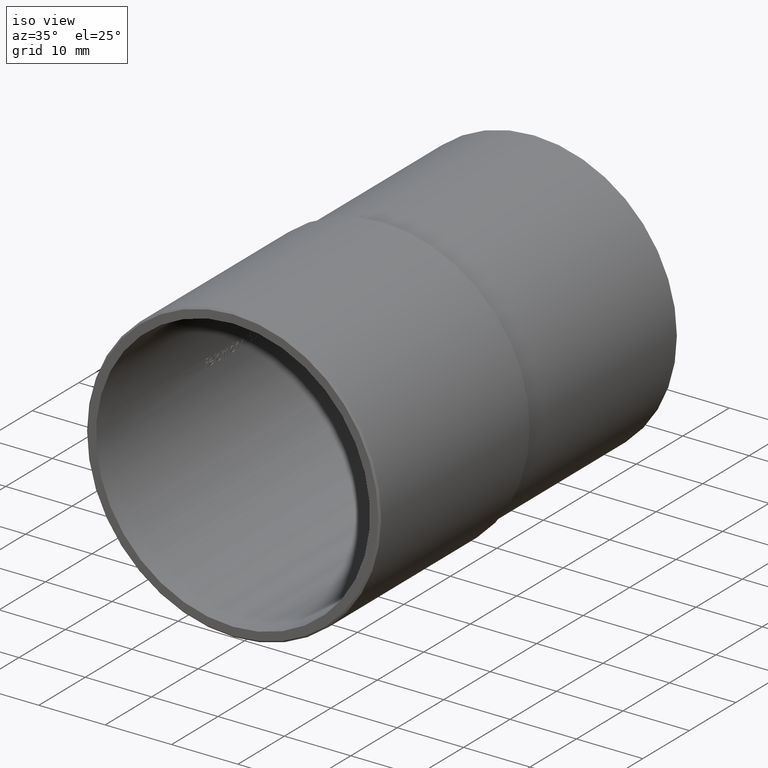
[diagram: clean part render]
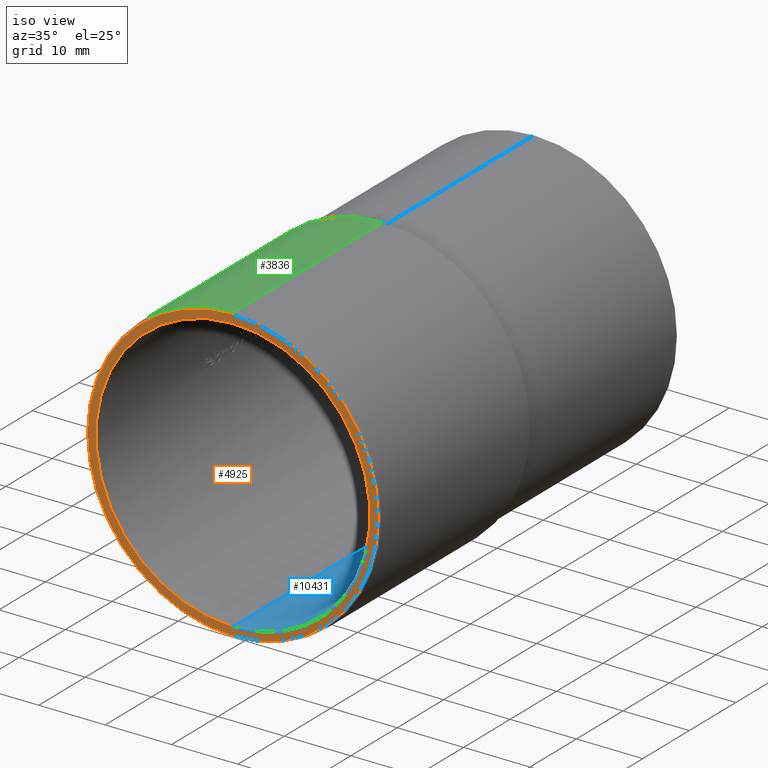
[diagram: same view with three faces highlighted in distinct colors, each labeled with its STEP entity id]
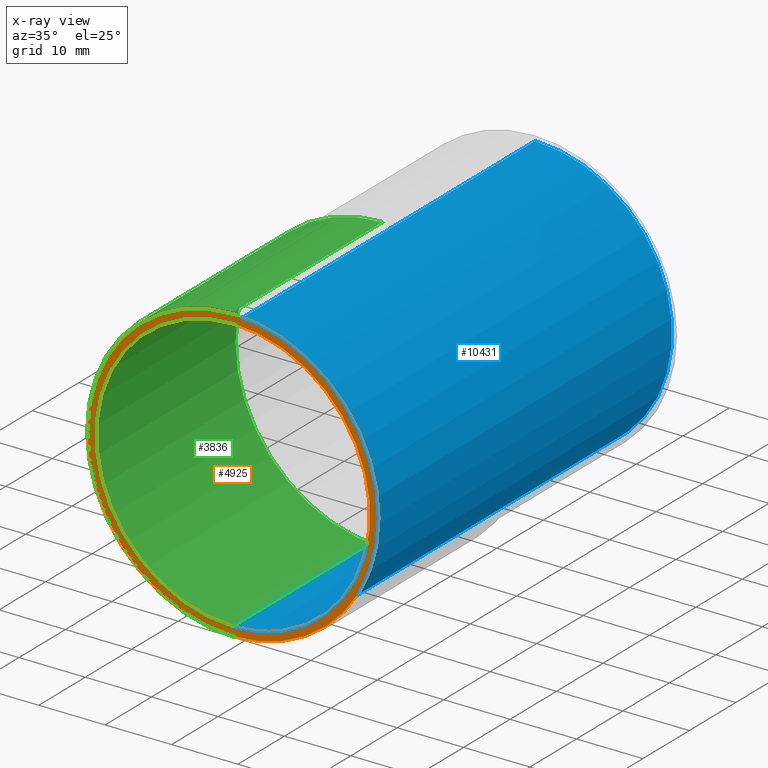
[diagram: x-ray of the same camera — body ghosted, the three highlighted faces saturated]
A machine part, iso view with three faces highlighted in distinct colors.
The next image is the same camera in x-ray (body ghosted, the three faces saturated) — at least one of them is partly hidden behind the body in this view.
Their STEP definitions:

[orange] entity #4925 — the highlighted planar face has unit normal (0, 1, 0).
#17 = CARTESIAN_POINT ( 'NONE',  ( 0.0000000000000000000, -32.50000000000000000, 0.0000000000000000000 ) ) ;
#24 = CARTESIAN_POINT ( 'NONE',  ( 0.0000000000000000000, -32.50000000000000000, 0.0000000000000000000 ) ) ;
#66 = CIRCLE ( 'NONE', #155, 20.64999999999999900 ) ;
#108 = ORIENTED_EDGE ( 'NONE', *, *, #622, .T. ) ;
#155 = AXIS2_PLACEMENT_3D ( 'NONE', #17, #4730, #3847 ) ;
#352 = AXIS2_PLACEMENT_3D ( 'NONE', #6008, #1014, #6878 ) ;
#622 = EDGE_CURVE ( 'NONE', #9423, #4036, #8121, .T. ) ;
#1014 = DIRECTION ( 'NONE',  ( -0.0000000000000000000, -1.000000000000000000, -0.0000000000000000000 ) ) ;
#1022 = DIRECTION ( 'NONE',  ( 0.0000000000000000000, -0.0000000000000000000, 1.000000000000000000 ) ) ;
#1252 = CARTESIAN_POINT ( 'NONE',  ( 0.0000000000000000000, -32.50000000000000000, -20.64999999999999900 ) ) ;
#1814 = PLANE ( 'NONE',  #3576 ) ;
#2022 = EDGE_CURVE ( 'NONE', #6354, #3841, #10160, .T. ) ;
#2247 = CIRCLE ( 'NONE', #352, 21.90000000000000200 ) ;
#2742 = EDGE_CURVE ( 'NONE', #3841, #6354, #66, .T. ) ;
#3576 = AXIS2_PLACEMENT_3D ( 'NONE', #5195, #6022, #1022 ) ;
#3841 = VERTEX_POINT ( 'NONE', #1252 ) ;
#3847 = DIRECTION ( 'NONE',  ( 0.0000000000000000000, 0.0000000000000000000, -1.000000000000000000 ) ) ;
#3959 = FACE_OUTER_BOUND ( 'NONE', #9610, .T. ) ;
#4036 = VERTEX_POINT ( 'NONE', #8671 ) ;
#4680 = CARTESIAN_POINT ( 'NONE',  ( 0.0000000000000000000, -32.50000000000000000, 0.0000000000000000000 ) ) ;
#4730 = DIRECTION ( 'NONE',  ( 0.0000000000000000000, -1.000000000000000000, 0.0000000000000000000 ) ) ;
#4925 = ADVANCED_FACE ( 'NONE', ( #3959, #10584 ), #1814, .F. ) ;
#5155 = CARTESIAN_POINT ( 'NONE',  ( 2.528895640239284100E-015, -32.50000000000000000, 20.64999999999999900 ) ) ;
#5195 = CARTESIAN_POINT ( 'NONE',  ( 0.0000000000000000000, -32.50000000000000000, 0.0000000000000000000 ) ) ;
#5577 = DIRECTION ( 'NONE',  ( 0.0000000000000000000, -1.000000000000000000, 0.0000000000000000000 ) ) ;
#5600 = AXIS2_PLACEMENT_3D ( 'NONE', #4680, #5577, #5622 ) ;
#5622 = DIRECTION ( 'NONE',  ( 0.0000000000000000000, 0.0000000000000000000, -1.000000000000000000 ) ) ;
#5690 = EDGE_CURVE ( 'NONE', #4036, #9423, #2247, .T. ) ;
#5938 = CARTESIAN_POINT ( 'NONE',  ( 2.697284575122045300E-015, -32.50000000000000000, -21.90000000000000200 ) ) ;
#6008 = CARTESIAN_POINT ( 'NONE',  ( 0.0000000000000000000, -32.50000000000000000, 0.0000000000000000000 ) ) ;
#6022 = DIRECTION ( 'NONE',  ( 0.0000000000000000000, 1.000000000000000000, 0.0000000000000000000 ) ) ;
#6354 = VERTEX_POINT ( 'NONE', #5155 ) ;
#6878 = DIRECTION ( 'NONE',  ( 0.0000000000000000000, 0.0000000000000000000, 1.000000000000000000 ) ) ;
#7146 = ORIENTED_EDGE ( 'NONE', *, *, #2022, .F. ) ;
#7566 = DIRECTION ( 'NONE',  ( 0.0000000000000000000, 0.0000000000000000000, 1.000000000000000000 ) ) ;
#7933 = AXIS2_PLACEMENT_3D ( 'NONE', #24, #8146, #7566 ) ;
#8025 = EDGE_LOOP ( 'NONE', ( #9913, #7146 ) ) ;
#8121 = CIRCLE ( 'NONE', #7933, 21.90000000000000200 ) ;
#8146 = DIRECTION ( 'NONE',  ( -0.0000000000000000000, -1.000000000000000000, -0.0000000000000000000 ) ) ;
#8671 = CARTESIAN_POINT ( 'NONE',  ( 0.0000000000000000000, -32.50000000000000000, 21.90000000000000200 ) ) ;
#9242 = ORIENTED_EDGE ( 'NONE', *, *, #5690, .T. ) ;
#9423 = VERTEX_POINT ( 'NONE', #5938 ) ;
#9610 = EDGE_LOOP ( 'NONE', ( #9242, #108 ) ) ;
#9913 = ORIENTED_EDGE ( 'NONE', *, *, #2742, .F. ) ;
#10160 = CIRCLE ( 'NONE', #5600, 20.64999999999999900 ) ;
#10584 = FACE_BOUND ( 'NONE', #8025, .T. ) ;

[blue] entity #10431 — the highlighted cylindrical surface (partial cylindrical patch) has radius 20.65 mm, axis along (-0, -1, -0).
#17 = CARTESIAN_POINT ( 'NONE',  ( 0.0000000000000000000, -32.50000000000000000, 0.0000000000000000000 ) ) ;
#66 = CIRCLE ( 'NONE', #155, 20.64999999999999900 ) ;
#131 = VECTOR ( 'NONE', #7981, 1000.000000000000000 ) ;
#155 = AXIS2_PLACEMENT_3D ( 'NONE', #17, #4730, #3847 ) ;
#165 = CIRCLE ( 'NONE', #6518, 20.64999999999999900 ) ;
#274 = VERTEX_POINT ( 'NONE', #8781 ) ;
#316 = CARTESIAN_POINT ( 'NONE',  ( 0.0000000000000000000, 32.50000000000000000, -20.64999999999999900 ) ) ;
#1017 = EDGE_CURVE ( 'NONE', #274, #6354, #2082, .T. ) ;
#1043 = VECTOR ( 'NONE', #4595, 1000.000000000000000 ) ;
#1223 = CARTESIAN_POINT ( 'NONE',  ( 0.0000000000000000000, 32.50000000000000000, 0.0000000000000000000 ) ) ;
#1252 = CARTESIAN_POINT ( 'NONE',  ( 0.0000000000000000000, -32.50000000000000000, -20.64999999999999900 ) ) ;
#1253 = EDGE_CURVE ( 'NONE', #7330, #3841, #1555, .T. ) ;
#1515 = CARTESIAN_POINT ( 'NONE',  ( 0.0000000000000000000, 32.50000000000000000, 0.0000000000000000000 ) ) ;
#1555 = LINE ( 'NONE', #2031, #1043 ) ;
#1797 = ORIENTED_EDGE ( 'NONE', *, *, #1253, .T. ) ;
#2031 = CARTESIAN_POINT ( 'NONE',  ( 0.0000000000000000000, 32.50000000000000000, -20.64999999999999900 ) ) ;
#2082 = LINE ( 'NONE', #4641, #131 ) ;
#2367 = DIRECTION ( 'NONE',  ( 0.0000000000000000000, 0.0000000000000000000, -1.000000000000000000 ) ) ;
#2742 = EDGE_CURVE ( 'NONE', #3841, #6354, #66, .T. ) ;
#3789 = CYLINDRICAL_SURFACE ( 'NONE', #9019, 20.64999999999999900 ) ;
#3841 = VERTEX_POINT ( 'NONE', #1252 ) ;
#3847 = DIRECTION ( 'NONE',  ( 0.0000000000000000000, 0.0000000000000000000, -1.000000000000000000 ) ) ;
#3878 = ORIENTED_EDGE ( 'NONE', *, *, #1017, .F. ) ;
#4595 = DIRECTION ( 'NONE',  ( -0.0000000000000000000, -1.000000000000000000, -0.0000000000000000000 ) ) ;
#4641 = CARTESIAN_POINT ( 'NONE',  ( 2.528895640239284100E-015, 32.50000000000000000, 20.64999999999999900 ) ) ;
#4730 = DIRECTION ( 'NONE',  ( 0.0000000000000000000, -1.000000000000000000, 0.0000000000000000000 ) ) ;
#5155 = CARTESIAN_POINT ( 'NONE',  ( 2.528895640239284100E-015, -32.50000000000000000, 20.64999999999999900 ) ) ;
#6145 = EDGE_CURVE ( 'NONE', #7330, #274, #165, .T. ) ;
#6354 = VERTEX_POINT ( 'NONE', #5155 ) ;
#6518 = AXIS2_PLACEMENT_3D ( 'NONE', #1515, #7400, #2367 ) ;
#7330 = VERTEX_POINT ( 'NONE', #316 ) ;
#7400 = DIRECTION ( 'NONE',  ( 0.0000000000000000000, -1.000000000000000000, 0.0000000000000000000 ) ) ;
#7981 = DIRECTION ( 'NONE',  ( -0.0000000000000000000, -1.000000000000000000, -0.0000000000000000000 ) ) ;
#8086 = ORIENTED_EDGE ( 'NONE', *, *, #6145, .F. ) ;
#8249 = FACE_OUTER_BOUND ( 'NONE', #10602, .T. ) ;
#8781 = CARTESIAN_POINT ( 'NONE',  ( 2.528895640239284100E-015, 32.50000000000000000, 20.64999999999999900 ) ) ;
#9019 = AXIS2_PLACEMENT_3D ( 'NONE', #1223, #10388, #9563 ) ;
#9563 = DIRECTION ( 'NONE',  ( 0.0000000000000000000, 0.0000000000000000000, -1.000000000000000000 ) ) ;
#9884 = ORIENTED_EDGE ( 'NONE', *, *, #2742, .T. ) ;
#10388 = DIRECTION ( 'NONE',  ( -0.0000000000000000000, -1.000000000000000000, -0.0000000000000000000 ) ) ;
#10431 = ADVANCED_FACE ( 'NONE', ( #8249 ), #3789, .F. ) ;
#10602 = EDGE_LOOP ( 'NONE', ( #3878, #8086, #1797, #9884 ) ) ;

[green] entity #3836 — the highlighted cylindrical surface (partial cylindrical patch) has radius 22.15 mm, axis along (0, 1, 0).
#11 = VECTOR ( 'NONE', #1490, 1000.000000000000000 ) ;
#141 = CARTESIAN_POINT ( 'NONE',  ( 0.0000000000000000000, -32.25000000000000000, 22.14999999999999900 ) ) ;
#204 = VECTOR ( 'NONE', #7048, 1000.000000000000000 ) ;
#370 = VERTEX_POINT ( 'NONE', #3625 ) ;
#427 = AXIS2_PLACEMENT_3D ( 'NONE', #6470, #6389, #2036 ) ;
#634 = CARTESIAN_POINT ( 'NONE',  ( 0.0000000000000000000, -32.50000000000000000, 22.14999999999999900 ) ) ;
#648 = AXIS2_PLACEMENT_3D ( 'NONE', #2846, #8707, #3688 ) ;
#650 = ORIENTED_EDGE ( 'NONE', *, *, #9934, .T. ) ;
#847 = EDGE_CURVE ( 'NONE', #8950, #1737, #5104, .T. ) ;
#1141 = DIRECTION ( 'NONE',  ( 0.0000000000000000000, 1.000000000000000000, 0.0000000000000000000 ) ) ;
#1490 = DIRECTION ( 'NONE',  ( 0.0000000000000000000, 1.000000000000000000, 0.0000000000000000000 ) ) ;
#1737 = VERTEX_POINT ( 'NONE', #141 ) ;
#1739 = CYLINDRICAL_SURFACE ( 'NONE', #9235, 22.14999999999999900 ) ;
#2036 = DIRECTION ( 'NONE',  ( 0.0000000000000000000, 0.0000000000000000000, 1.000000000000000000 ) ) ;
#2224 = LINE ( 'NONE', #634, #11 ) ;
#2234 = EDGE_CURVE ( 'NONE', #8950, #6846, #8824, .T. ) ;
#2846 = CARTESIAN_POINT ( 'NONE',  ( 0.0000000000000000000, -0.2999999999999808400, 0.0000000000000000000 ) ) ;
#3625 = CARTESIAN_POINT ( 'NONE',  ( 0.0000000000000000000, -0.2999999999999808400, 22.14999999999999900 ) ) ;
#3688 = DIRECTION ( 'NONE',  ( 0.0000000000000000000, 0.0000000000000000000, 1.000000000000000000 ) ) ;
#3836 = ADVANCED_FACE ( 'NONE', ( #6188 ), #1739, .T. ) ;
#4059 = EDGE_CURVE ( 'NONE', #370, #6846, #5402, .T. ) ;
#4560 = ORIENTED_EDGE ( 'NONE', *, *, #4059, .T. ) ;
#4574 = CARTESIAN_POINT ( 'NONE',  ( 0.0000000000000000000, -32.50000000000000000, 0.0000000000000000000 ) ) ;
#4682 = ORIENTED_EDGE ( 'NONE', *, *, #2234, .F. ) ;
#5104 = CIRCLE ( 'NONE', #427, 22.14999999999999900 ) ;
#5402 = CIRCLE ( 'NONE', #648, 22.14999999999999900 ) ;
#5707 = EDGE_LOOP ( 'NONE', ( #4682, #7813, #650, #4560 ) ) ;
#6188 = FACE_OUTER_BOUND ( 'NONE', #5707, .T. ) ;
#6389 = DIRECTION ( 'NONE',  ( -0.0000000000000000000, 1.000000000000000000, -0.0000000000000000000 ) ) ;
#6470 = CARTESIAN_POINT ( 'NONE',  ( 0.0000000000000000000, -32.25000000000000000, 0.0000000000000000000 ) ) ;
#6846 = VERTEX_POINT ( 'NONE', #7248 ) ;
#6947 = CARTESIAN_POINT ( 'NONE',  ( 2.712592660111387200E-015, -32.50000000000000000, -22.14999999999999900 ) ) ;
#7048 = DIRECTION ( 'NONE',  ( 0.0000000000000000000, 1.000000000000000000, 0.0000000000000000000 ) ) ;
#7248 = CARTESIAN_POINT ( 'NONE',  ( 2.712592660111387200E-015, -0.2999999999999808400, -22.14999999999999900 ) ) ;
#7813 = ORIENTED_EDGE ( 'NONE', *, *, #847, .T. ) ;
#8707 = DIRECTION ( 'NONE',  ( 0.0000000000000000000, -1.000000000000000000, 0.0000000000000000000 ) ) ;
#8824 = LINE ( 'NONE', #6947, #204 ) ;
#8950 = VERTEX_POINT ( 'NONE', #9475 ) ;
#9235 = AXIS2_PLACEMENT_3D ( 'NONE', #4574, #1141, #9557 ) ;
#9475 = CARTESIAN_POINT ( 'NONE',  ( 2.712592660111387200E-015, -32.25000000000000000, -22.14999999999999900 ) ) ;
#9557 = DIRECTION ( 'NONE',  ( 0.0000000000000000000, 0.0000000000000000000, 1.000000000000000000 ) ) ;
#9934 = EDGE_CURVE ( 'NONE', #1737, #370, #2224, .T. ) ;